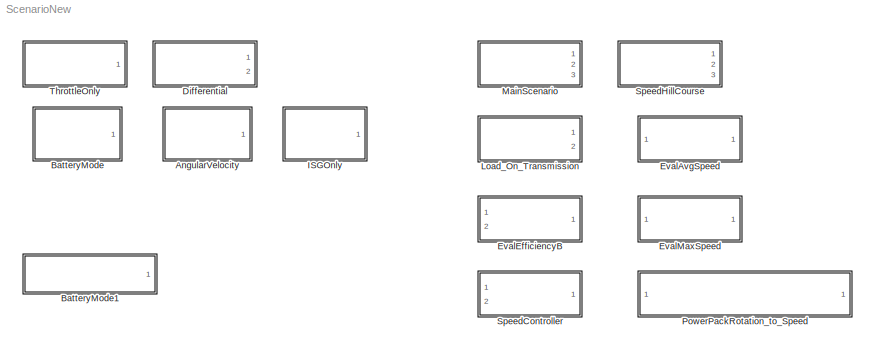
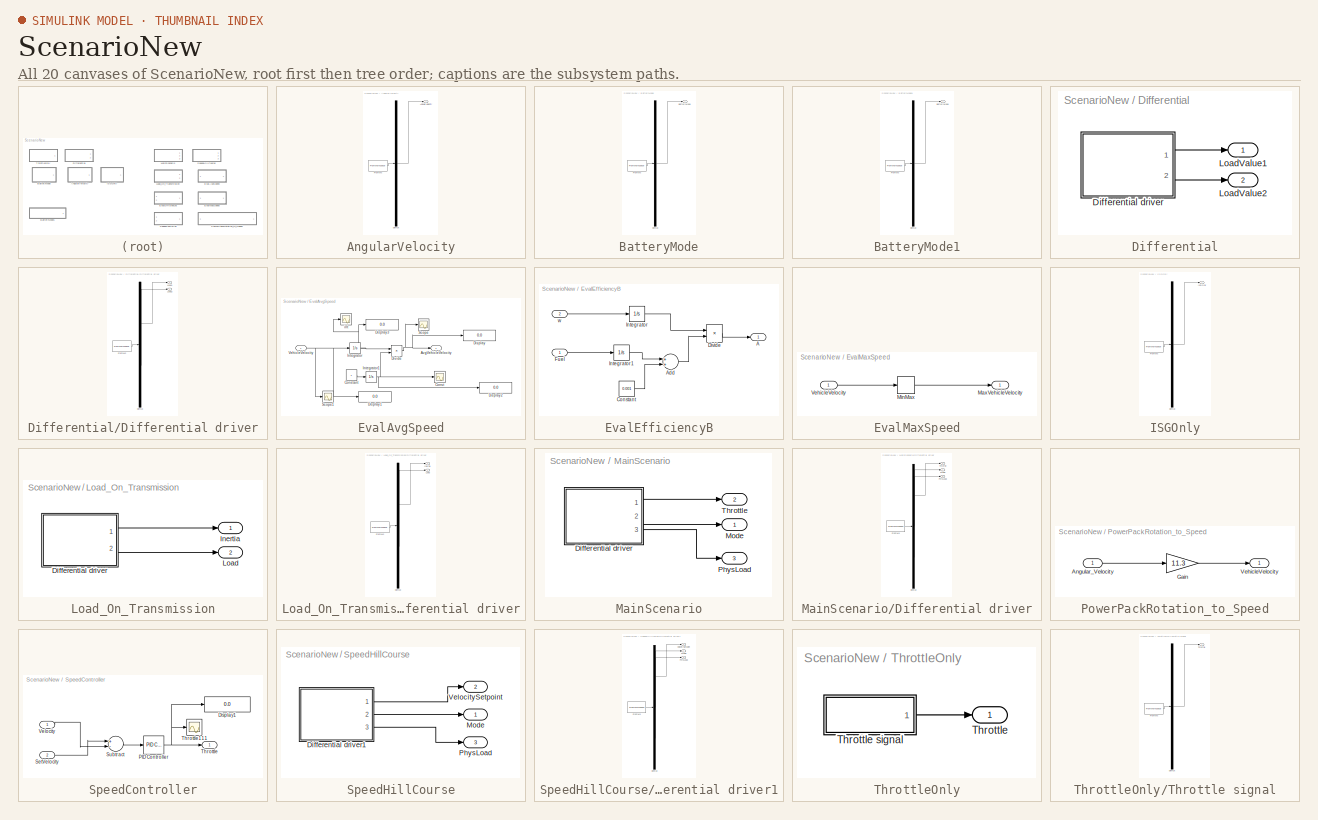
[diagram: thumbnail index - all 20 canvases of the model, root first then tree order]
MODEL ScenarioNew
KIND model
BLOCK [SubSystem] AngularVelocity
  ClipboardFcn = sigbuilder_block('clipboard');
  CloseFcn = sigbuilder_block('close');
  CopyFcn = sigbuilder_block('copy');
  DeleteFcn = sigbuilder_block('delete');
  FunctionWithSeparateData = off
  LoadFcn = sigbuilder_block('load');
  MaskCapabilities = slmaskedcaps(gcbh)
  MaskDescription = Create and generate interchangeable groups of signals whose waveforms are piecewise linear.
  MaskDisplay = plot(0,0,100,100,[10,10,40,40,10],[80,20,20,80,80],[40,10],[50,50], [40,27,10],[65,72,56],[40,25,25,10],[28,28,43,43]);
  MaskHideContents = on
  MaskIconFrame = on
  MaskIconOpaque = off
  MaskIconRotate = port
  MaskIconUnits = autoscale
  MaskInitialization = if ~strcmp(get_param(bdroot(gcbh),'SimulationStatus'),'stopped') tuvar = sigbuilder_block('maskInit'); end
  MaskPortRotate = default
  MaskSelfModifiable = on
  MaskType = Sigbuilder block
  MinAlgLoopOccurrences = off
  ModelCloseFcn = sigbuilder_block('modelClose');
  NameChangeFcn = sigbuilder_block('namechange');
  Opaque = off
  OpenFcn = sigbuilder_block('open',[437.25 199.5 550.5 399.75 ]);
  Ports = [0, 1]
  PreSaveFcn = sigbuilder_block('preSave');
  PropExecContextOutsideSubsystem = off
  RTWSystemCode = Auto
  RequestExecContextInheritance = off
  SID = 1
  StartFcn = sigbuilder_block('start');
  StopFcn = sigbuilder_block('stop');
  Tag = STV Subsys
BLOCK [Outport] AngularVelocity/AngularVelocity
  IconDisplay = Port number
  SID = 1:3
  Tag = STV Outport
BLOCK [Demux] AngularVelocity/Demux
  Outputs = 1
  Ports = [1, 1]
  SID = 1:1
  Tag = STV Demux
BLOCK [FromWorkspace] AngularVelocity/FromWs
  SID = 1:2
  SampleTime = 0
  SigBuilderData = DataTag0
  Tag = STV FromWs
  VariableName = tuvar
  VnvData = DataTag1
  ZeroCross = on
BLOCK [SubSystem] BatteryMode
  ClipboardFcn = sigbuilder_block('clipboard');
  CloseFcn = sigbuilder_block('close');
  CopyFcn = sigbuilder_block('copy');
  DeleteFcn = sigbuilder_block('delete');
  FunctionWithSeparateData = off
  LoadFcn = sigbuilder_block('load');
  MaskCapabilities = slmaskedcaps(gcbh)
  MaskDescription = Create and generate interchangeable groups of signals whose waveforms are piecewise linear.
  MaskDisplay = plot(0,0,100,100,[10,10,40,40,10],[80,20,20,80,80],[40,10],[50,50], [40,27,10],[65,72,56],[40,25,25,10],[28,28,43,43]);
  MaskHideContents = on
  MaskIconFrame = on
  MaskIconOpaque = off
  MaskIconRotate = port
  MaskIconUnits = autoscale
  MaskInitialization = if ~strcmp(get_param(bdroot(gcbh),'SimulationStatus'),'stopped') tuvar = sigbuilder_block('maskInit'); end
  MaskPortRotate = default
  MaskSelfModifiable = on
  MaskType = Sigbuilder block
  MinAlgLoopOccurrences = off
  ModelCloseFcn = sigbuilder_block('modelClose');
  NameChangeFcn = sigbuilder_block('namechange');
  Opaque = off
  OpenFcn = sigbuilder_block('open',[437.25 199.5 550.5 399.75 ]);
  Ports = [0, 1]
  PreSaveFcn = sigbuilder_block('preSave');
  PropExecContextOutsideSubsystem = off
  RTWSystemCode = Auto
  RequestExecContextInheritance = off
  SID = 2
  StartFcn = sigbuilder_block('start');
  StopFcn = sigbuilder_block('stop');
  Tag = STV Subsys
BLOCK [Outport] BatteryMode/BatteryMode
  IconDisplay = Port number
  SID = 2:3
  Tag = STV Outport
BLOCK [Demux] BatteryMode/Demux
  Outputs = 1
  Ports = [1, 1]
  SID = 2:1
  Tag = STV Demux
BLOCK [FromWorkspace] BatteryMode/FromWs
  SID = 2:2
  SampleTime = 0
  SigBuilderData = DataTag2
  Tag = STV FromWs
  VariableName = tuvar
  VnvData = DataTag3
  ZeroCross = on
BLOCK [SubSystem] BatteryMode1
  ClipboardFcn = sigbuilder_block('clipboard');
  CloseFcn = sigbuilder_block('close');
  CopyFcn = sigbuilder_block('copy');
  DeleteFcn = sigbuilder_block('delete');
  FunctionWithSeparateData = off
  LoadFcn = sigbuilder_block('load');
  MaskCapabilities = slmaskedcaps(gcbh)
  MaskDescription = Create and generate interchangeable groups of signals whose waveforms are piecewise linear.
  MaskDisplay = plot(0,0,100,100,[10,10,40,40,10],[80,20,20,80,80],[40,10],[50,50], [40,27,10],[65,72,56],[40,25,25,10],[28,28,43,43]);
  MaskHideContents = on
  MaskIconFrame = on
  MaskIconOpaque = off
  MaskIconRotate = port
  MaskIconUnits = autoscale
  MaskInitialization = if ~strcmp(get_param(bdroot(gcbh),'SimulationStatus'),'stopped') tuvar = sigbuilder_block('maskInit'); end
  MaskPortRotate = default
  MaskSelfModifiable = on
  MaskType = Sigbuilder block
  MinAlgLoopOccurrences = off
  ModelCloseFcn = sigbuilder_block('modelClose');
  NameChangeFcn = sigbuilder_block('namechange');
  Opaque = off
  OpenFcn = sigbuilder_block('open',[437.25 199.5 550.5 399.75 ]);
  Ports = [0, 1]
  PreSaveFcn = sigbuilder_block('preSave');
  PropExecContextOutsideSubsystem = off
  RTWSystemCode = Auto
  RequestExecContextInheritance = off
  SID = 3
  StartFcn = sigbuilder_block('start');
  StopFcn = sigbuilder_block('stop');
  Tag = STV Subsys
BLOCK [Outport] BatteryMode1/BatteryMode
  IconDisplay = Port number
  SID = 3:3
  Tag = STV Outport
BLOCK [Demux] BatteryMode1/Demux
  Outputs = 1
  Ports = [1, 1]
  SID = 3:1
  Tag = STV Demux
BLOCK [FromWorkspace] BatteryMode1/FromWs
  SID = 3:2
  SampleTime = 0
  SigBuilderData = DataTag4
  Tag = STV FromWs
  VariableName = tuvar
  VnvData = DataTag5
  ZeroCross = on
BLOCK [SubSystem] Differential
  FunctionWithSeparateData = off
  MaskHideContents = off
  MinAlgLoopOccurrences = off
  Opaque = off
  Ports = [0, 2]
  PropExecContextOutsideSubsystem = off
  RTWSystemCode = Auto
  RequestExecContextInheritance = off
  SID = 4
BLOCK [SubSystem] Differential/Differential driver
  ClipboardFcn = sigbuilder_block('clipboard');
  CloseFcn = sigbuilder_block('close');
  CopyFcn = sigbuilder_block('copy');
  DeleteFcn = sigbuilder_block('delete');
  FunctionWithSeparateData = off
  LoadFcn = sigbuilder_block('load');
  MaskCapabilities = slmaskedcaps(gcbh)
  MaskDescription = Create and generate interchangeable groups of signals whose waveforms are piecewise linear.
  MaskDisplay = plot(0,0,100,100,[10,10,40,40,10],[80,20,20,80,80],[40,10],[50,50], [40,27,10],[65,72,56],[40,25,25,10],[28,28,43,43]);
  MaskHideContents = on
  MaskIconFrame = on
  MaskIconOpaque = off
  MaskIconRotate = port
  MaskIconUnits = autoscale
  MaskInitialization = if ~strcmp(get_param(bdroot(gcbh),'SimulationStatus'),'stopped') tuvar = sigbuilder_block('maskInit'); end
  MaskPortRotate = default
  MaskSelfModifiable = on
  MaskType = Sigbuilder block
  MinAlgLoopOccurrences = off
  ModelCloseFcn = sigbuilder_block('modelClose');
  NameChangeFcn = sigbuilder_block('namechange');
  Opaque = off
  OpenFcn = sigbuilder_block('open',[437.25 199.5 550.5 399.75 ]);
  Ports = [0, 2]
  PreSaveFcn = sigbuilder_block('preSave');
  PropExecContextOutsideSubsystem = off
  RTWSystemCode = Auto
  RequestExecContextInheritance = off
  SID = 5
  StartFcn = sigbuilder_block('start');
  StopFcn = sigbuilder_block('stop');
  Tag = STV Subsys
BLOCK [Demux] Differential/Differential driver/Demux
  Outputs = 2
  Ports = [1, 2]
  SID = 5:1
  Tag = STV Demux
BLOCK [FromWorkspace] Differential/Differential driver/FromWs
  SID = 5:2
  SampleTime = 0
  SigBuilderData = DataTag6
  Tag = STV FromWs
  VariableName = tuvar
  VnvData = DataTag7
  ZeroCross = on
BLOCK [Outport] Differential/Differential driver/Load1
  IconDisplay = Port number
  SID = 5:3
  Tag = STV Outport
BLOCK [Outport] Differential/Differential driver/Load2
  IconDisplay = Port number
  Port = 2
  SID = 5:4
  Tag = STV Outport
BLOCK [Outport] Differential/LoadValue1
  IconDisplay = Port number
  SID = 6
BLOCK [Outport] Differential/LoadValue2
  IconDisplay = Port number
  Port = 2
  SID = 7
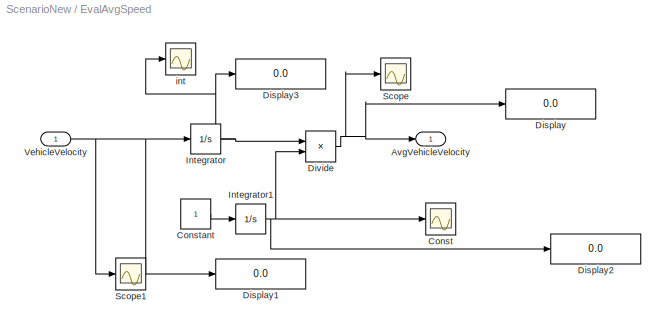
BLOCK [SubSystem] EvalAvgSpeed
  FunctionWithSeparateData = off
  MaskHideContents = off
  MinAlgLoopOccurrences = off
  Opaque = off
  Ports = [1, 1]
  PropExecContextOutsideSubsystem = off
  RTWSystemCode = Auto
  RequestExecContextInheritance = off
  SID = 8
BLOCK [Outport] EvalAvgSpeed/AvgVehicleVelocity
  IconDisplay = Port number
  SID = 22
BLOCK [Scope] EvalAvgSpeed/Const
  DataFormat = StructureWithTime
  Floating = off
  NumInputPorts = 1
  Ports = [1]
  SID = 10
  SampleTime = 0
  SaveName = ScopeData1
  YMax = 4250
  YMin = 250
BLOCK [Constant] EvalAvgSpeed/Constant
  SID = 11
BLOCK [Display] EvalAvgSpeed/Display
  Decimation = 1
  Lockdown = off
  Ports = [1]
  SID = 12
BLOCK [Display] EvalAvgSpeed/Display1
  Decimation = 1
  Lockdown = off
  Ports = [1]
  SID = 13
BLOCK [Display] EvalAvgSpeed/Display2
  Decimation = 1
  Lockdown = off
  Ports = [1]
  SID = 14
BLOCK [Display] EvalAvgSpeed/Display3
  Decimation = 1
  Lockdown = off
  Ports = [1]
  SID = 15
BLOCK [Product] EvalAvgSpeed/Divide
  InputSameDT = off
  Inputs = */
  OutDataTypeStr = Inherit: Inherit via internal rule
  Ports = [2, 1]
  RndMeth = Floor
  SID = 16
  SaturateOnIntegerOverflow = off
BLOCK [Integrator] EvalAvgSpeed/Integrator
  Ports = [1, 1]
  SID = 17
BLOCK [Integrator] EvalAvgSpeed/Integrator1
  Ports = [1, 1]
  SID = 18
BLOCK [Scope] EvalAvgSpeed/Scope
  DataFormat = StructureWithTime
  Floating = off
  NumInputPorts = 1
  Ports = [1]
  SID = 19
  SampleTime = 0
  SaveName = ScopeData2
  YMax = 4250
  YMin = 250
BLOCK [Scope] EvalAvgSpeed/Scope1
  DataFormat = StructureWithTime
  Floating = off
  NumInputPorts = 1
  Ports = [1]
  SID = 20
  SampleTime = 0
  SaveName = ScopeData3
  YMax = 4250
  YMin = 250
BLOCK [Inport] EvalAvgSpeed/VehicleVelocity
  IconDisplay = Port number
  SID = 9
BLOCK [Scope] EvalAvgSpeed/int
  DataFormat = StructureWithTime
  Floating = off
  NumInputPorts = 1
  Ports = [1]
  SID = 21
  SampleTime = 0
  SaveName = ScopeData4
  YMax = 4250
  YMin = 250
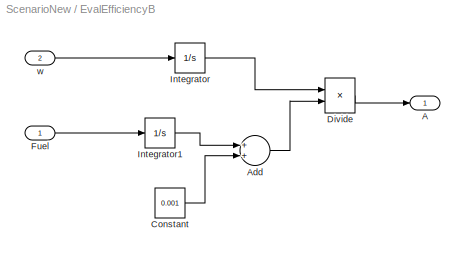
BLOCK [SubSystem] EvalEfficiencyB
  FunctionWithSeparateData = off
  MaskHideContents = off
  MinAlgLoopOccurrences = off
  Opaque = off
  Ports = [2, 1]
  PropExecContextOutsideSubsystem = off
  RTWSystemCode = Auto
  RequestExecContextInheritance = off
  SID = 23
BLOCK [Outport] EvalEfficiencyB/A
  IconDisplay = Port number
  SID = 31
BLOCK [Sum] EvalEfficiencyB/Add
  InputSameDT = off
  OutDataTypeStr = Inherit: Inherit via internal rule
  Ports = [2, 1]
  SID = 26
  SaturateOnIntegerOverflow = off
BLOCK [Constant] EvalEfficiencyB/Constant
  SID = 27
  Value = 0.001
BLOCK [Product] EvalEfficiencyB/Divide
  InputSameDT = off
  Inputs = */
  OutDataTypeStr = Inherit: Inherit via internal rule
  Ports = [2, 1]
  RndMeth = Floor
  SID = 28
  SaturateOnIntegerOverflow = off
BLOCK [Inport] EvalEfficiencyB/Fuel
  IconDisplay = Port number
  SID = 24
BLOCK [Integrator] EvalEfficiencyB/Integrator
  Ports = [1, 1]
  SID = 29
BLOCK [Integrator] EvalEfficiencyB/Integrator1
  Ports = [1, 1]
  SID = 30
BLOCK [Inport] EvalEfficiencyB/w
  IconDisplay = Port number
  Port = 2
  SID = 25
BLOCK [SubSystem] EvalMaxSpeed
  FunctionWithSeparateData = off
  MaskHideContents = off
  MinAlgLoopOccurrences = off
  Opaque = off
  Ports = [1, 1]
  PropExecContextOutsideSubsystem = off
  RTWSystemCode = Auto
  RequestExecContextInheritance = off
  SID = 32
BLOCK [Outport] EvalMaxSpeed/MaxVehicleVelocity
  IconDisplay = Port number
  SID = 35
BLOCK [MinMax] EvalMaxSpeed/MinMax
  Function = max
  InputSameDT = off
  Ports = [1, 1]
  SID = 34
  SaturateOnIntegerOverflow = off
BLOCK [Inport] EvalMaxSpeed/VehicleVelocity
  IconDisplay = Port number
  SID = 33
BLOCK [SubSystem] ISGOnly
  ClipboardFcn = sigbuilder_block('clipboard');
  CloseFcn = sigbuilder_block('close');
  CopyFcn = sigbuilder_block('copy');
  DeleteFcn = sigbuilder_block('delete');
  FunctionWithSeparateData = off
  LoadFcn = sigbuilder_block('load');
  MaskCapabilities = slmaskedcaps(gcbh)
  MaskDescription = Create and generate interchangeable groups of signals whose waveforms are piecewise linear.
  MaskDisplay = plot(0,0,100,100,[10,10,40,40,10],[80,20,20,80,80],[40,10],[50,50], [40,27,10],[65,72,56],[40,25,25,10],[28,28,43,43]);
  MaskHideContents = on
  MaskIconFrame = on
  MaskIconOpaque = off
  MaskIconRotate = port
  MaskIconUnits = autoscale
  MaskInitialization = if ~strcmp(get_param(bdroot(gcbh),'SimulationStatus'),'stopped') tuvar = sigbuilder_block('maskInit'); end
  MaskPortRotate = default
  MaskSelfModifiable = on
  MaskType = Sigbuilder block
  MinAlgLoopOccurrences = off
  ModelCloseFcn = sigbuilder_block('modelClose');
  NameChangeFcn = sigbuilder_block('namechange');
  Opaque = off
  OpenFcn = sigbuilder_block('open',[437.25 199.5 550.5 399.75 ]);
  Ports = [0, 1]
  PreSaveFcn = sigbuilder_block('preSave');
  PropExecContextOutsideSubsystem = off
  RTWSystemCode = Auto
  RequestExecContextInheritance = off
  SID = 36
  StartFcn = sigbuilder_block('start');
  StopFcn = sigbuilder_block('stop');
  Tag = STV Subsys
BLOCK [Demux] ISGOnly/Demux
  Outputs = 1
  Ports = [1, 1]
  SID = 36:1
  Tag = STV Demux
BLOCK [FromWorkspace] ISGOnly/FromWs
  SID = 36:2
  SampleTime = 0
  SigBuilderData = DataTag8
  Tag = STV FromWs
  VariableName = tuvar
  VnvData = DataTag9
  ZeroCross = on
BLOCK [Outport] ISGOnly/ISGOnly
  IconDisplay = Port number
  SID = 36:3
  Tag = STV Outport
BLOCK [SubSystem] Load_On_Transmission
  FunctionWithSeparateData = off
  MaskHideContents = off
  MinAlgLoopOccurrences = off
  Opaque = off
  Ports = [0, 2]
  PropExecContextOutsideSubsystem = off
  RTWSystemCode = Auto
  RequestExecContextInheritance = off
  SID = 37
BLOCK [SubSystem] Load_On_Transmission/Differential driver
  ClipboardFcn = sigbuilder_block('clipboard');
  CloseFcn = sigbuilder_block('close');
  CopyFcn = sigbuilder_block('copy');
  DeleteFcn = sigbuilder_block('delete');
  FunctionWithSeparateData = off
  LoadFcn = sigbuilder_block('load');
  MaskCapabilities = slmaskedcaps(gcbh)
  MaskDescription = Create and generate interchangeable groups of signals whose waveforms are piecewise linear.
  MaskDisplay = plot(0,0,100,100,[10,10,40,40,10],[80,20,20,80,80],[40,10],[50,50], [40,27,10],[65,72,56],[40,25,25,10],[28,28,43,43]);
  MaskHideContents = on
  MaskIconFrame = on
  MaskIconOpaque = off
  MaskIconRotate = port
  MaskIconUnits = autoscale
  MaskInitialization = if ~strcmp(get_param(bdroot(gcbh),'SimulationStatus'),'stopped') tuvar = sigbuilder_block('maskInit'); end
  MaskPortRotate = default
  MaskSelfModifiable = on
  MaskType = Sigbuilder block
  MinAlgLoopOccurrences = off
  ModelCloseFcn = sigbuilder_block('modelClose');
  NameChangeFcn = sigbuilder_block('namechange');
  Opaque = off
  OpenFcn = sigbuilder_block('open',[711.75 149.25 550.5 399.75 ]);
  Ports = [0, 2]
  PreSaveFcn = sigbuilder_block('preSave');
  PropExecContextOutsideSubsystem = off
  RTWSystemCode = Auto
  RequestExecContextInheritance = off
  SID = 38
  StartFcn = sigbuilder_block('start');
  StopFcn = sigbuilder_block('stop');
  Tag = STV Subsys
BLOCK [Demux] Load_On_Transmission/Differential driver/Demux
  Outputs = 2
  Ports = [1, 2]
  SID = 38:1
  Tag = STV Demux
BLOCK [FromWorkspace] Load_On_Transmission/Differential driver/FromWs
  SID = 38:2
  SampleTime = 0
  SigBuilderData = DataTag10
  Tag = STV FromWs
  VariableName = tuvar
  VnvData = DataTag11
  ZeroCross = on
BLOCK [Outport] Load_On_Transmission/Differential driver/Inertia
  IconDisplay = Port number
  SID = 38:3
  Tag = STV Outport
BLOCK [Outport] Load_On_Transmission/Differential driver/Load
  IconDisplay = Port number
  Port = 2
  SID = 38:4
  Tag = STV Outport
BLOCK [Outport] Load_On_Transmission/Inertia
  IconDisplay = Port number
  SID = 39
BLOCK [Outport] Load_On_Transmission/Load
  IconDisplay = Port number
  Port = 2
  SID = 40
BLOCK [SubSystem] MainScenario
  FunctionWithSeparateData = off
  MaskHideContents = off
  MinAlgLoopOccurrences = off
  Opaque = off
  Ports = [0, 3]
  PropExecContextOutsideSubsystem = off
  RTWSystemCode = Auto
  RequestExecContextInheritance = off
  SID = 41
BLOCK [SubSystem] MainScenario/Differential driver
  ClipboardFcn = sigbuilder_block('clipboard');
  CloseFcn = sigbuilder_block('close');
  CopyFcn = sigbuilder_block('copy');
  DeleteFcn = sigbuilder_block('delete');
  FunctionWithSeparateData = off
  LoadFcn = sigbuilder_block('load');
  MaskCapabilities = slmaskedcaps(gcbh)
  MaskDescription = Create and generate interchangeable groups of signals whose waveforms are piecewise linear.
  MaskDisplay = plot(0,0,100,100,[10,10,40,40,10],[80,20,20,80,80],[40,10],[50,50], [40,27,10],[65,72,56],[40,25,25,10],[28,28,43,43]);
  MaskHideContents = on
  MaskIconFrame = on
  MaskIconOpaque = off
  MaskIconRotate = port
  MaskIconUnits = autoscale
  MaskInitialization = if ~strcmp(get_param(bdroot(gcbh),'SimulationStatus'),'stopped') tuvar = sigbuilder_block('maskInit'); end
  MaskPortRotate = default
  MaskSelfModifiable = on
  MaskType = Sigbuilder block
  MinAlgLoopOccurrences = off
  ModelCloseFcn = sigbuilder_block('modelClose');
  NameChangeFcn = sigbuilder_block('namechange');
  Opaque = off
  OpenFcn = sigbuilder_block('open',[-1510.5 -82.5 550.5 386.25 ]);
  Ports = [0, 3]
  PreSaveFcn = sigbuilder_block('preSave');
  PropExecContextOutsideSubsystem = off
  RTWSystemCode = Auto
  RequestExecContextInheritance = off
  SID = 42
  StartFcn = sigbuilder_block('start');
  StopFcn = sigbuilder_block('stop');
  Tag = STV Subsys
BLOCK [Demux] MainScenario/Differential driver/Demux
  Outputs = 3
  Ports = [1, 3]
  SID = 42:1
  Tag = STV Demux
BLOCK [FromWorkspace] MainScenario/Differential driver/FromWs
  SID = 42:2
  SampleTime = 0
  SigBuilderData = DataTag12
  Tag = STV FromWs
  VariableName = tuvar
  VnvData = DataTag13
  ZeroCross = on
BLOCK [Outport] MainScenario/Differential driver/Mode
  IconDisplay = Port number
  Port = 2
  SID = 42:4
  Tag = STV Outport
BLOCK [Outport] MainScenario/Differential driver/PhysLoad
  IconDisplay = Port number
  Port = 3
  SID = 42:5
  Tag = STV Outport
BLOCK [Outport] MainScenario/Differential driver/Throttle
  IconDisplay = Port number
  SID = 42:3
  Tag = STV Outport
BLOCK [Outport] MainScenario/Mode
  IconDisplay = Port number
  SID = 43
BLOCK [Outport] MainScenario/PhysLoad
  IconDisplay = Port number
  Port = 3
  SID = 45
BLOCK [Outport] MainScenario/Throttle
  IconDisplay = Port number
  Port = 2
  SID = 44
BLOCK [SubSystem] PowerPackRotation_to_Speed
  FunctionWithSeparateData = off
  MaskHideContents = off
  MinAlgLoopOccurrences = off
  Opaque = off
  Ports = [1, 1]
  PropExecContextOutsideSubsystem = off
  RTWSystemCode = Auto
  RequestExecContextInheritance = off
  SID = 46
BLOCK [Inport] PowerPackRotation_to_Speed/Angular_Velocity
  IconDisplay = Port number
  SID = 47
BLOCK [Gain] PowerPackRotation_to_Speed/Gain
  Gain = 11.3
  OutDataTypeStr = Inherit: Inherit via internal rule
  ParamDataTypeStr = Inherit: Inherit via internal rule
  SID = 48
  SaturateOnIntegerOverflow = off
BLOCK [Outport] PowerPackRotation_to_Speed/VehicleVelocity
  IconDisplay = Port number
  SID = 49
BLOCK [SubSystem] SpeedController
  FunctionWithSeparateData = off
  MaskHideContents = off
  MinAlgLoopOccurrences = off
  Opaque = off
  Ports = [2, 1]
  PropExecContextOutsideSubsystem = off
  RTWSystemCode = Auto
  RequestExecContextInheritance = off
  SID = 50
BLOCK [Display] SpeedController/Display1
  Decimation = 1
  Lockdown = off
  Ports = [1]
  SID = 53
BLOCK [Reference] SpeedController/PID Controller  REF=simulink/Continuous/PID Controller
  AntiWindupMode = clamping
  Controller = PI
  D = 0
  DOutDataTypeStr = Inherit: Inherit via internal rule
  DOutMax = []
  DOutMin = []
  DParamDataTypeStr = Inherit: Inherit via internal rule
  DParamMax = []
  DParamMin = []
  ExternalReset = none
  FilterContinuousStateAttributes = ''
  FilterMethod = Forward Euler
  FilterOutDataTypeStr = Inherit: Inherit via internal rule
  FilterOutMax = []
  FilterOutMin = []
  FilterRTWStateStorageClass = Auto
  FilterStateMustResolveToSignalObject = off
  Form = Parallel
  FunctionWithSeparateData = off
  GeneratePreprocessorConditionals = off
  I = 0.1
  IOutDataTypeStr = Inherit: Inherit via internal rule
  IOutMax = []
  IOutMin = []
  IParamDataTypeStr = Inherit: Inherit via internal rule
  IParamMax = []
  IParamMin = []
  IgnoreLimit = off
  InitialConditionForFilter = 0
  InitialConditionForIntegrator = 0
  InitialConditionSource = internal
  IntegratorContinuousStateAttributes = ''
  IntegratorMethod = Forward Euler
  IntegratorOutDataTypeStr = Inherit: Inherit via internal rule
  IntegratorOutMax = []
  IntegratorOutMin = []
  IntegratorRTWStateStorageClass = Auto
  IntegratorStateMustResolveToSignalObject = off
  Kb = 1
  KbOutDataTypeStr = Inherit: Inherit via internal rule
  KbOutMax = []
  KbOutMin = []
  KbParamDataTypeStr = Inherit: Inherit via internal rule
  KbParamMax = []
  KbParamMin = []
  Kt = 1
  KtOutDataTypeStr = Inherit: Inherit via internal rule
  KtOutMax = []
  KtOutMin = []
  KtParamDataTypeStr = Inherit: Inherit via internal rule
  KtParamMax = []
  KtParamMin = []
  LimitOutput = on
  LinearizeAsGain = off
  LockScale = off
  LowerSaturationLimit = 0
  N = 100
  NOutDataTypeStr = Inherit: Inherit via internal rule
  NOutMax = []
  NOutMin = []
  NParamDataTypeStr = Inherit: Inherit via internal rule
  NParamMax = []
  NParamMin = []
  P = 0.01
  POutDataTypeStr = Inherit: Inherit via internal rule
  POutMax = []
  POutMin = []
  PParamDataTypeStr = Inherit: Inherit via internal rule
  PParamMax = []
  PParamMin = []
  Ports = [1, 1]
  RTWMemSecDataConstants = Inherit from model
  RTWMemSecDataInternal = Inherit from model
  RTWMemSecDataParameters = Inherit from model
  RTWMemSecFuncExecute = Inherit from model
  RTWMemSecFuncInitTerm = Inherit from model
  RndMeth = Floor
  SID = 54
  SampleTime = 1
  SaturateOnIntegerOverflow = off
  SaturationOutDataTypeStr = Inherit: Same as input
  SaturationOutMax = []
  SaturationOutMin = []
  ShowPortLabels = FromPortIcon
  SourceBlock = simulink/Continuous/PID Controller
  SourceType = PID 1dof
  SumAccumDataTypeStr = Inherit: Inherit via internal rule
  SumDAccumDataTypeStr = Inherit: Inherit via internal rule
  SumDOutDataTypeStr = Inherit: Inherit via internal rule
  SumDOutMax = []
  SumDOutMin = []
  SumI1AccumDataTypeStr = Inherit: Inherit via internal rule
  SumI1OutDataTypeStr = Inherit: Inherit via internal rule
  SumI1OutMax = []
  SumI1OutMin = []
  SumI2AccumDataTypeStr = Inherit: Inherit via internal rule
  SumI2OutDataTypeStr = Inherit: Inherit via internal rule
  SumI2OutMax = []
  SumI2OutMin = []
  SumI3AccumDataTypeStr = Inherit: Inherit via internal rule
  SumI3OutDataTypeStr = Inherit: Inherit via internal rule
  SumI3OutMax = []
  SumI3OutMin = []
  SumOutDataTypeStr = Inherit: Inherit via internal rule
  SumOutMax = []
  SumOutMin = []
  SystemSampleTime = -1
  TimeDomain = Continuous-time
  TrackingMode = off
  UpperSaturationLimit = 1
  ZeroCross = on
BLOCK [Inport] SpeedController/SetVelocity
  IconDisplay = Port number
  Port = 2
  SID = 52
BLOCK [Sum] SpeedController/Subtract
  InputSameDT = off
  Inputs = +-
  OutDataTypeStr = Inherit: Inherit via internal rule
  Ports = [2, 1]
  SID = 55
  SaturateOnIntegerOverflow = off
BLOCK [Outport] SpeedController/Throttle
  IconDisplay = Port number
  SID = 57
BLOCK [Scope] SpeedController/Throttle111
  DataFormat = StructureWithTime
  Floating = off
  NumInputPorts = 1
  Ports = [1]
  SID = 56
  SampleTime = 0
  TimeRange = 100
  YMax = 8
  YMin = -3
BLOCK [Inport] SpeedController/Velocity
  IconDisplay = Port number
  SID = 51
BLOCK [SubSystem] SpeedHillCourse
  FunctionWithSeparateData = off
  MaskHideContents = off
  MinAlgLoopOccurrences = off
  Opaque = off
  Ports = [0, 3]
  PropExecContextOutsideSubsystem = off
  RTWSystemCode = Auto
  RequestExecContextInheritance = off
  SID = 58
BLOCK [SubSystem] SpeedHillCourse/Differential driver1
  ClipboardFcn = sigbuilder_block('clipboard');
  CloseFcn = sigbuilder_block('close');
  CopyFcn = sigbuilder_block('copy');
  DeleteFcn = sigbuilder_block('delete');
  FunctionWithSeparateData = off
  LoadFcn = sigbuilder_block('load',[-1325.25 309.75 969.75 501.75 ]);
  MaskCapabilities = slmaskedcaps(gcbh)
  MaskDescription = Create and generate interchangeable groups of signals whose waveforms are piecewise linear.
  MaskDisplay = plot(0,0,100,100,[10,10,40,40,10],[80,20,20,80,80],[40,10],[50,50], [40,27,10],[65,72,56],[40,25,25,10],[28,28,43,43]);
  MaskHideContents = on
  MaskIconFrame = on
  MaskIconOpaque = off
  MaskIconRotate = port
  MaskIconUnits = autoscale
  MaskInitialization = if ~strcmp(get_param(bdroot(gcbh),'SimulationStatus'),'stopped') tuvar = sigbuilder_block('maskInit'); end
  MaskPortRotate = default
  MaskSelfModifiable = on
  MaskType = Sigbuilder block
  MinAlgLoopOccurrences = off
  ModelCloseFcn = sigbuilder_block('modelClose');
  NameChangeFcn = sigbuilder_block('namechange');
  Opaque = off
  OpenFcn = sigbuilder_block('open',[165 24 969.75 501.75 ]);
  Ports = [0, 3]
  PreSaveFcn = sigbuilder_block('preSave');
  PropExecContextOutsideSubsystem = off
  RTWSystemCode = Auto
  RequestExecContextInheritance = off
  SID = 59
  StartFcn = sigbuilder_block('start');
  StopFcn = sigbuilder_block('stop');
  Tag = STV Subsys
BLOCK [Demux] SpeedHillCourse/Differential driver1/Demux
  Outputs = 3
  Ports = [1, 3]
  SID = 59:1
  Tag = STV Demux
BLOCK [FromWorkspace] SpeedHillCourse/Differential driver1/FromWs
  SID = 59:2
  SampleTime = 0
  SigBuilderData = DataTag14
  Tag = STV FromWs
  VariableName = tuvar
  VnvData = DataTag15
  ZeroCross = on
BLOCK [Outport] SpeedHillCourse/Differential driver1/Mode
  IconDisplay = Port number
  Port = 2
  SID = 59:4
  Tag = STV Outport
BLOCK [Outport] SpeedHillCourse/Differential driver1/PhysLoad
  IconDisplay = Port number
  Port = 3
  SID = 59:5
  Tag = STV Outport
BLOCK [Outport] SpeedHillCourse/Differential driver1/VelocitySetpoint
  IconDisplay = Port number
  SID = 59:3
  Tag = STV Outport
BLOCK [Outport] SpeedHillCourse/Mode
  IconDisplay = Port number
  SID = 60
BLOCK [Outport] SpeedHillCourse/PhysLoad
  IconDisplay = Port number
  Port = 3
  SID = 62
BLOCK [Outport] SpeedHillCourse/VelocitySetpoint
  IconDisplay = Port number
  Port = 2
  SID = 61
BLOCK [SubSystem] ThrottleOnly
  FunctionWithSeparateData = off
  MaskHideContents = off
  MinAlgLoopOccurrences = off
  Opaque = off
  Ports = [0, 1]
  PropExecContextOutsideSubsystem = off
  RTWSystemCode = Auto
  RequestExecContextInheritance = off
  SID = 63
BLOCK [Outport] ThrottleOnly/Throttle
  IconDisplay = Port number
  SID = 65
BLOCK [SubSystem] ThrottleOnly/Throttle signal
  ClipboardFcn = sigbuilder_block('clipboard');
  CloseFcn = sigbuilder_block('close');
  CopyFcn = sigbuilder_block('copy');
  DeleteFcn = sigbuilder_block('delete');
  FunctionWithSeparateData = off
  LoadFcn = sigbuilder_block('load');
  MaskCapabilities = slmaskedcaps(gcbh)
  MaskDescription = Create and generate interchangeable groups of signals whose waveforms are piecewise linear.
  MaskDisplay = plot(0,0,100,100,[10,10,40,40,10],[80,20,20,80,80],[40,10],[50,50], [40,27,10],[65,72,56],[40,25,25,10],[28,28,43,43]);
  MaskHideContents = on
  MaskIconFrame = on
  MaskIconOpaque = off
  MaskIconRotate = port
  MaskIconUnits = autoscale
  MaskInitialization = if ~strcmp(get_param(bdroot(gcbh),'SimulationStatus'),'stopped') tuvar = sigbuilder_block('maskInit'); end
  MaskPortRotate = default
  MaskSelfModifiable = on
  MaskType = Sigbuilder block
  MinAlgLoopOccurrences = off
  ModelCloseFcn = sigbuilder_block('modelClose');
  NameChangeFcn = sigbuilder_block('namechange');
  Opaque = off
  OpenFcn = sigbuilder_block('open',[437.25 199.5 550.5 399.75 ]);
  Ports = [0, 1]
  PreSaveFcn = sigbuilder_block('preSave');
  PropExecContextOutsideSubsystem = off
  RTWSystemCode = Auto
  RequestExecContextInheritance = off
  SID = 64
  StartFcn = sigbuilder_block('start');
  StopFcn = sigbuilder_block('stop');
  Tag = STV Subsys
BLOCK [Demux] ThrottleOnly/Throttle signal/Demux
  Outputs = 1
  Ports = [1, 1]
  SID = 64:1
  Tag = STV Demux
BLOCK [FromWorkspace] ThrottleOnly/Throttle signal/FromWs
  SID = 64:2
  SampleTime = 0
  SigBuilderData = DataTag16
  Tag = STV FromWs
  VariableName = tuvar
  VnvData = DataTag17
  ZeroCross = on
BLOCK [Outport] ThrottleOnly/Throttle signal/Throttle
  IconDisplay = Port number
  SID = 64:3
  Tag = STV Outport
LINE AngularVelocity/Demux:1 -> AngularVelocity/AngularVelocity:1
LINE AngularVelocity/FromWs:1 -> AngularVelocity/Demux:1
LINE BatteryMode/Demux:1 -> BatteryMode/BatteryMode:1
LINE BatteryMode/FromWs:1 -> BatteryMode/Demux:1
LINE BatteryMode1/Demux:1 -> BatteryMode1/BatteryMode:1
LINE BatteryMode1/FromWs:1 -> BatteryMode1/Demux:1
LINE Differential/Differential driver/Demux:1 -> Differential/Differential driver/Load1:1
LINE Differential/Differential driver/Demux:2 -> Differential/Differential driver/Load2:1
LINE Differential/Differential driver/FromWs:1 -> Differential/Differential driver/Demux:1
LINE Differential/Differential driver:1 -> Differential/LoadValue1:1
LINE Differential/Differential driver:2 -> Differential/LoadValue2:1
LINE EvalAvgSpeed/Constant:1 -> EvalAvgSpeed/Integrator1:1
NET EvalAvgSpeed/Divide:1 -> EvalAvgSpeed/AvgVehicleVelocity:1, EvalAvgSpeed/Display:1, EvalAvgSpeed/Scope:1
NET EvalAvgSpeed/Integrator1:1 -> EvalAvgSpeed/Const:1, EvalAvgSpeed/Display2:1, EvalAvgSpeed/Divide:2
NET EvalAvgSpeed/Integrator:1 -> EvalAvgSpeed/Display3:1, EvalAvgSpeed/Divide:1, EvalAvgSpeed/int:1
NET EvalAvgSpeed/VehicleVelocity:1 -> EvalAvgSpeed/Display1:1, EvalAvgSpeed/Integrator:1, EvalAvgSpeed/Scope1:1
LINE EvalEfficiencyB/Add:1 -> EvalEfficiencyB/Divide:2
LINE EvalEfficiencyB/Constant:1 -> EvalEfficiencyB/Add:2
LINE EvalEfficiencyB/Divide:1 -> EvalEfficiencyB/A:1
LINE EvalEfficiencyB/Fuel:1 -> EvalEfficiencyB/Integrator1:1
LINE EvalEfficiencyB/Integrator1:1 -> EvalEfficiencyB/Add:1
LINE EvalEfficiencyB/Integrator:1 -> EvalEfficiencyB/Divide:1
LINE EvalEfficiencyB/w:1 -> EvalEfficiencyB/Integrator:1
LINE EvalMaxSpeed/MinMax:1 -> EvalMaxSpeed/MaxVehicleVelocity:1
LINE EvalMaxSpeed/VehicleVelocity:1 -> EvalMaxSpeed/MinMax:1
LINE ISGOnly/Demux:1 -> ISGOnly/ISGOnly:1
LINE ISGOnly/FromWs:1 -> ISGOnly/Demux:1
LINE Load_On_Transmission/Differential driver/Demux:1 -> Load_On_Transmission/Differential driver/Inertia:1
LINE Load_On_Transmission/Differential driver/Demux:2 -> Load_On_Transmission/Differential driver/Load:1
LINE Load_On_Transmission/Differential driver/FromWs:1 -> Load_On_Transmission/Differential driver/Demux:1
LINE Load_On_Transmission/Differential driver:1 -> Load_On_Transmission/Inertia:1
LINE Load_On_Transmission/Differential driver:2 -> Load_On_Transmission/Load:1
LINE MainScenario/Differential driver/Demux:1 -> MainScenario/Differential driver/Throttle:1
LINE MainScenario/Differential driver/Demux:2 -> MainScenario/Differential driver/Mode:1
LINE MainScenario/Differential driver/Demux:3 -> MainScenario/Differential driver/PhysLoad:1
LINE MainScenario/Differential driver/FromWs:1 -> MainScenario/Differential driver/Demux:1
LINE MainScenario/Differential driver:1 -> MainScenario/Throttle:1
LINE MainScenario/Differential driver:2 -> MainScenario/Mode:1
LINE MainScenario/Differential driver:3 -> MainScenario/PhysLoad:1
LINE PowerPackRotation_to_Speed/Angular_Velocity:1 -> PowerPackRotation_to_Speed/Gain:1
LINE PowerPackRotation_to_Speed/Gain:1 -> PowerPackRotation_to_Speed/VehicleVelocity:1
NET SpeedController/PID Controller:1 -> SpeedController/Display1:1, SpeedController/Throttle111:1, SpeedController/Throttle:1
LINE SpeedController/SetVelocity:1 -> SpeedController/Subtract:1
LINE SpeedController/Subtract:1 -> SpeedController/PID Controller:1
LINE SpeedController/Velocity:1 -> SpeedController/Subtract:2
LINE SpeedHillCourse/Differential driver1/Demux:1 -> SpeedHillCourse/Differential driver1/VelocitySetpoint:1
LINE SpeedHillCourse/Differential driver1/Demux:2 -> SpeedHillCourse/Differential driver1/Mode:1
LINE SpeedHillCourse/Differential driver1/Demux:3 -> SpeedHillCourse/Differential driver1/PhysLoad:1
LINE SpeedHillCourse/Differential driver1/FromWs:1 -> SpeedHillCourse/Differential driver1/Demux:1
LINE SpeedHillCourse/Differential driver1:1 -> SpeedHillCourse/VelocitySetpoint:1
LINE SpeedHillCourse/Differential driver1:2 -> SpeedHillCourse/Mode:1
LINE SpeedHillCourse/Differential driver1:3 -> SpeedHillCourse/PhysLoad:1
LINE ThrottleOnly/Throttle signal/Demux:1 -> ThrottleOnly/Throttle signal/Throttle:1
LINE ThrottleOnly/Throttle signal/FromWs:1 -> ThrottleOnly/Throttle signal/Demux:1
LINE ThrottleOnly/Throttle signal:1 -> ThrottleOnly/Throttle:1
note: NET lines group one-source signal fan-out (src -> all destinations, sorted); 1:1 wires keep LINE
